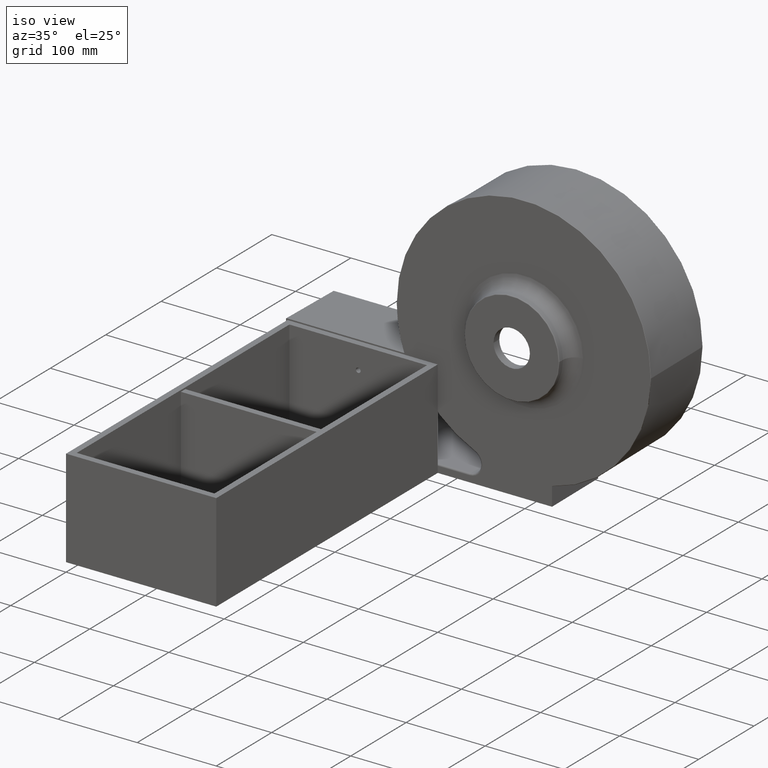
[diagram: clean part render]
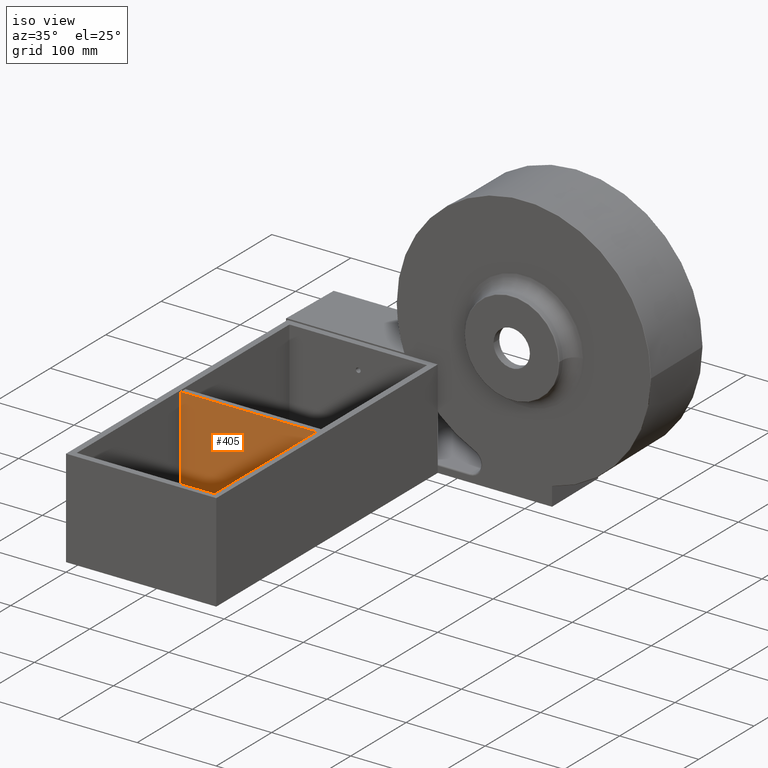
[diagram: same view with one face highlighted and labeled with its STEP entity id]
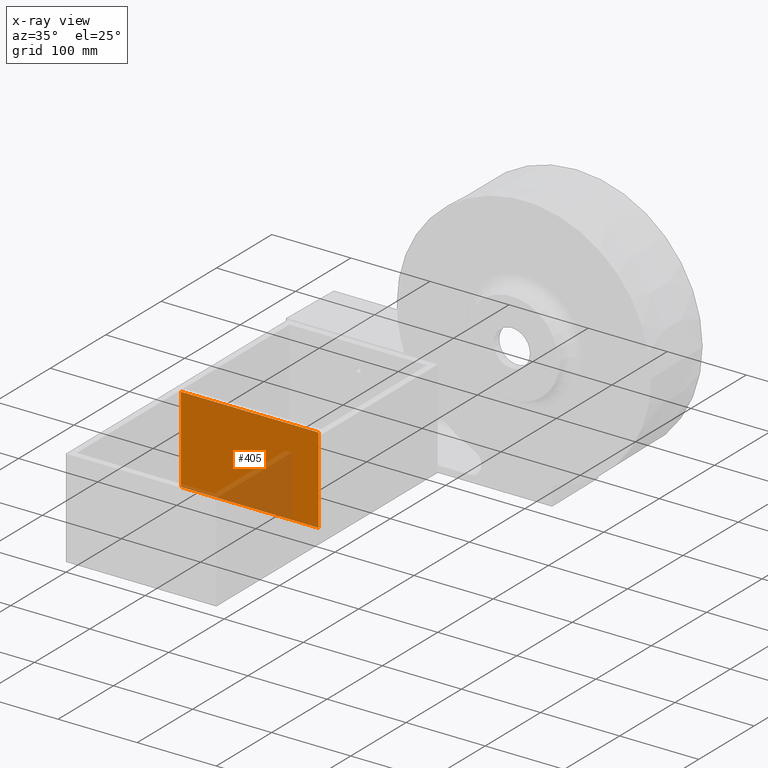
[diagram: x-ray of the same camera — body ghosted, the highlighted face saturated]
A machine part, iso view. The second image highlights one B-rep face of the part: STEP entity #405.
The next image is the same camera in x-ray: the body ghosted, the highlighted face saturated — about 24% of this face is hidden behind the body in this view.
In plain terms, the highlighted planar face has unit normal (-0, 1, 0).
Its self-contained STEP definition (entity closure, byte-faithful):
#129 = EDGE_CURVE ( 'NONE', #2643, #3196, #4289, .T. ) ;
#159 = DIRECTION ( 'NONE',  ( -1.000000000000000000, -0.0000000000000000000, -0.0000000000000000000 ) ) ;
#405 = ADVANCED_FACE ( 'NONE', ( #697 ), #2193, .F. ) ;
#449 = DIRECTION ( 'NONE',  ( 0.0000000000000000000, -2.546383084002653620E-16, 1.000000000000000000 ) ) ;
#614 = EDGE_CURVE ( 'NONE', #3685, #3555, #1827, .T. ) ;
#697 = FACE_OUTER_BOUND ( 'NONE', #1703, .T. ) ;
#700 = AXIS2_PLACEMENT_3D ( 'NONE', #4489, #1830, #449 ) ;
#812 = CARTESIAN_POINT ( 'NONE',  ( 8.000000000000015987, 195.9999999999999147, -110.9999999999999858 ) ) ;
#874 = CARTESIAN_POINT ( 'NONE',  ( 291.2931836849855927, 195.9999999999999147, -110.9999999999999858 ) ) ;
#1065 = ORIENTED_EDGE ( 'NONE', *, *, #129, .F. ) ;
#1327 = DIRECTION ( 'NONE',  ( -0.0000000000000000000, 2.546383084002653620E-16, -1.000000000000000000 ) ) ;
#1593 = LINE ( 'NONE', #2068, #2155 ) ;
#1703 = EDGE_LOOP ( 'NONE', ( #2770, #2319, #2296, #1065 ) ) ;
#1827 = LINE ( 'NONE', #2259, #3047 ) ;
#1830 = DIRECTION ( 'NONE',  ( -0.0000000000000000000, 1.000000000000000000, 2.546383084002653620E-16 ) ) ;
#1985 = CARTESIAN_POINT ( 'NONE',  ( 182.0000000000000000, 195.9999999999998863, -2.000000000000000888 ) ) ;
#2068 = CARTESIAN_POINT ( 'NONE',  ( 182.0000000000000000, 195.9999999999999147, -110.9999999999999574 ) ) ;
#2155 = VECTOR ( 'NONE', #2376, 1000.000000000000000 ) ;
#2193 = PLANE ( 'NONE',  #700 ) ;
#2259 = CARTESIAN_POINT ( 'NONE',  ( 291.2931836849855927, 195.9999999999998863, -2.000000000000000888 ) ) ;
#2296 = ORIENTED_EDGE ( 'NONE', *, *, #4537, .T. ) ;
#2319 = ORIENTED_EDGE ( 'NONE', *, *, #614, .T. ) ;
#2376 = DIRECTION ( 'NONE',  ( -2.238352872228138170E-16, 2.546383084002653620E-16, -1.000000000000000000 ) ) ;
#2643 = VERTEX_POINT ( 'NONE', #3789 ) ;
#2770 = ORIENTED_EDGE ( 'NONE', *, *, #4463, .F. ) ;
#2983 = CARTESIAN_POINT ( 'NONE',  ( 8.000000000000015987, 195.9999999999998863, -2.000000000000000888 ) ) ;
#3047 = VECTOR ( 'NONE', #3309, 1000.000000000000000 ) ;
#3085 = LINE ( 'NONE', #3935, #4197 ) ;
#3196 = VERTEX_POINT ( 'NONE', #812 ) ;
#3309 = DIRECTION ( 'NONE',  ( -1.000000000000000000, -0.0000000000000000000, -0.0000000000000000000 ) ) ;
#3347 = VECTOR ( 'NONE', #159, 1000.000000000000000 ) ;
#3555 = VERTEX_POINT ( 'NONE', #2983 ) ;
#3685 = VERTEX_POINT ( 'NONE', #1985 ) ;
#3789 = CARTESIAN_POINT ( 'NONE',  ( 182.0000000000000000, 195.9999999999999147, -110.9999999999999858 ) ) ;
#3935 = CARTESIAN_POINT ( 'NONE',  ( 8.000000000000015987, 195.9999999999999147, -110.9999999999999858 ) ) ;
#4197 = VECTOR ( 'NONE', #1327, 1000.000000000000000 ) ;
#4289 = LINE ( 'NONE', #874, #3347 ) ;
#4463 = EDGE_CURVE ( 'NONE', #3685, #2643, #1593, .T. ) ;
#4489 = CARTESIAN_POINT ( 'NONE',  ( 291.2931836849855927, 195.9999999999999147, -110.9999999999999858 ) ) ;
#4537 = EDGE_CURVE ( 'NONE', #3555, #3196, #3085, .T. ) ;